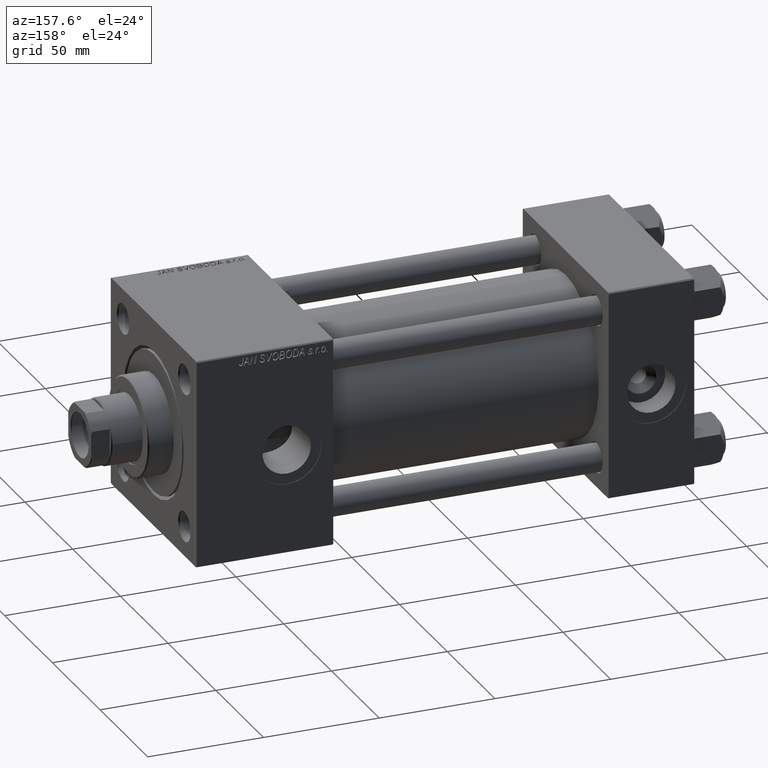
[diagram: clean part render]
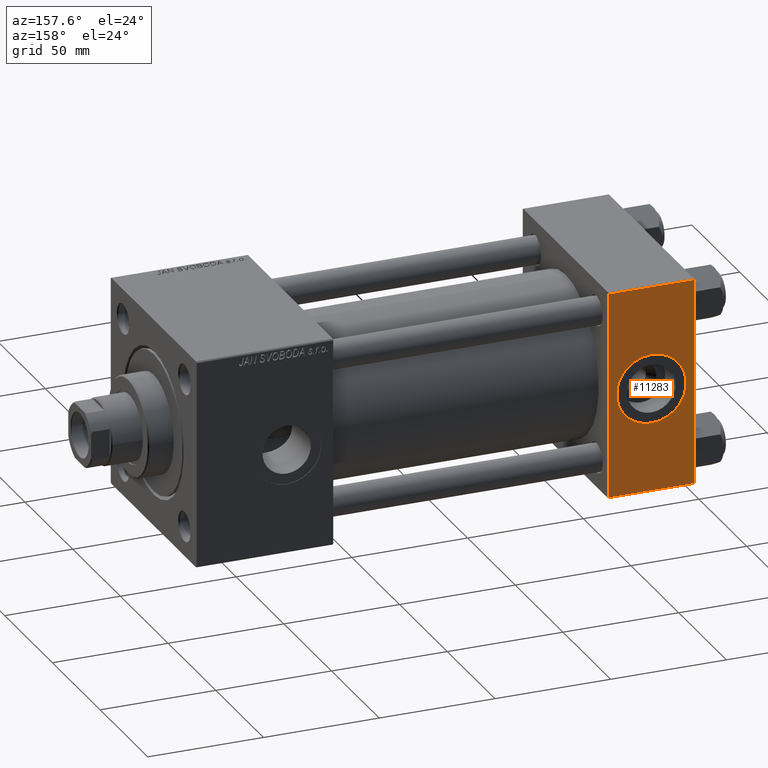
[diagram: same view with one face highlighted and labeled with its STEP entity id]
A machine part, auxiliary view. The second image highlights one B-rep face of the part: STEP entity #11283.
In plain terms, the highlighted planar face has unit normal (0, 1, 0).
Its self-contained STEP definition (entity closure, byte-faithful):
#76 = DIRECTION ( 'NONE',  ( 0.000000000000000000, 1.000000000000000000, 0.000000000000000000 ) ) ;
#372 = PLANE ( 'NONE',  #47318 ) ;
#624 = DIRECTION ( 'NONE',  ( 0.000000000000000000, -0.000000000000000000, 1.000000000000000000 ) ) ;
#1431 = CARTESIAN_POINT ( 'NONE',  ( 37.00000000000000000, 44.99999999999998579, 44.50000000000001421 ) ) ;
#3601 = CIRCLE ( 'NONE', #24708, 15.00000000000000178 ) ;
#3693 = DIRECTION ( 'NONE',  ( -0.000000000000000000, 1.000000000000000000, 0.000000000000000000 ) ) ;
#4444 = FACE_OUTER_BOUND ( 'NONE', #33919, .T. ) ;
#9525 = ORIENTED_EDGE ( 'NONE', *, *, #25649, .F. ) ;
#9831 = EDGE_LOOP ( 'NONE', ( #9525, #47221 ) ) ;
#11283 = ADVANCED_FACE ( 'NONE', ( #31376, #4444 ), #372, .T. ) ;
#12778 = CARTESIAN_POINT ( 'NONE',  ( 0.000000000000000000, 44.99999999999998579, 45.00000000000001421 ) ) ;
#13334 = CARTESIAN_POINT ( 'NONE',  ( 37.00000000000000000, 44.99999999999998579, -44.49999999999995737 ) ) ;
#13599 = EDGE_CURVE ( 'NONE', #38174, #45134, #24709, .T. ) ;
#13602 = VECTOR ( 'NONE', #15238, 1000.000000000000000 ) ;
#15238 = DIRECTION ( 'NONE',  ( 1.000000000000000000, 0.000000000000000000, 0.000000000000000000 ) ) ;
#16056 = LINE ( 'NONE', #32797, #28777 ) ;
#16568 = CARTESIAN_POINT ( 'NONE',  ( 18.50000000000000000, 44.99999999999998579, 15.00000000000000178 ) ) ;
#16971 = VERTEX_POINT ( 'NONE', #17012 ) ;
#17012 = CARTESIAN_POINT ( 'NONE',  ( 0.000000000000000000, 44.99999999999998579, 44.50000000000001421 ) ) ;
#17339 = CARTESIAN_POINT ( 'NONE',  ( 37.00000000000000000, 44.99999999999998579, 45.00000000000001421 ) ) ;
#17368 = DIRECTION ( 'NONE',  ( 0.000000000000000000, 0.000000000000000000, 1.000000000000000000 ) ) ;
#20894 = DIRECTION ( 'NONE',  ( 0.000000000000000000, 0.000000000000000000, -1.000000000000000000 ) ) ;
#20904 = DIRECTION ( 'NONE',  ( 0.000000000000000000, 0.000000000000000000, -1.000000000000000000 ) ) ;
#22959 = VECTOR ( 'NONE', #20904, 1000.000000000000000 ) ;
#22992 = CARTESIAN_POINT ( 'NONE',  ( 37.00000000000000000, 44.99999999999998579, 45.00000000000001421 ) ) ;
#23115 = VERTEX_POINT ( 'NONE', #48375 ) ;
#24708 = AXIS2_PLACEMENT_3D ( 'NONE', #34883, #76, #38926 ) ;
#24709 = LINE ( 'NONE', #17339, #22959 ) ;
#25179 = EDGE_CURVE ( 'NONE', #16971, #38174, #47900, .T. ) ;
#25649 = EDGE_CURVE ( 'NONE', #36779, #30102, #35534, .T. ) ;
#26030 = ORIENTED_EDGE ( 'NONE', *, *, #25179, .T. ) ;
#28511 = ORIENTED_EDGE ( 'NONE', *, *, #48137, .T. ) ;
#28777 = VECTOR ( 'NONE', #36603, 1000.000000000000000 ) ;
#29031 = CARTESIAN_POINT ( 'NONE',  ( 18.50000000000000355, 44.99999999999998579, -15.00000000000000178 ) ) ;
#30102 = VERTEX_POINT ( 'NONE', #29031 ) ;
#31376 = FACE_BOUND ( 'NONE', #9831, .T. ) ;
#32797 = CARTESIAN_POINT ( 'NONE',  ( 37.00000000000000000, 44.99999999999998579, -44.49999999999998579 ) ) ;
#33099 = DIRECTION ( 'NONE',  ( 0.000000000000000000, 1.000000000000000000, 0.000000000000000000 ) ) ;
#33919 = EDGE_LOOP ( 'NONE', ( #43243, #28511, #46695, #26030 ) ) ;
#34268 = VECTOR ( 'NONE', #20894, 1000.000000000000000 ) ;
#34883 = CARTESIAN_POINT ( 'NONE',  ( 18.50000000000000000, 44.99999999999998579, 0.000000000000000000 ) ) ;
#35534 = CIRCLE ( 'NONE', #39574, 15.00000000000000178 ) ;
#36603 = DIRECTION ( 'NONE',  ( -1.000000000000000000, 0.000000000000000000, 0.000000000000000000 ) ) ;
#36779 = VERTEX_POINT ( 'NONE', #16568 ) ;
#38174 = VERTEX_POINT ( 'NONE', #40178 ) ;
#38239 = EDGE_CURVE ( 'NONE', #16971, #23115, #44486, .T. ) ;
#38926 = DIRECTION ( 'NONE',  ( 0.000000000000000000, 0.000000000000000000, 1.000000000000000000 ) ) ;
#39574 = AXIS2_PLACEMENT_3D ( 'NONE', #47843, #33099, #17368 ) ;
#40178 = CARTESIAN_POINT ( 'NONE',  ( 37.00000000000000000, 44.99999999999998579, 44.50000000000001421 ) ) ;
#43243 = ORIENTED_EDGE ( 'NONE', *, *, #13599, .T. ) ;
#44486 = LINE ( 'NONE', #12778, #34268 ) ;
#45134 = VERTEX_POINT ( 'NONE', #13334 ) ;
#45983 = EDGE_CURVE ( 'NONE', #30102, #36779, #3601, .T. ) ;
#46695 = ORIENTED_EDGE ( 'NONE', *, *, #38239, .F. ) ;
#47221 = ORIENTED_EDGE ( 'NONE', *, *, #45983, .F. ) ;
#47318 = AXIS2_PLACEMENT_3D ( 'NONE', #22992, #3693, #624 ) ;
#47843 = CARTESIAN_POINT ( 'NONE',  ( 18.50000000000000000, 44.99999999999998579, 0.000000000000000000 ) ) ;
#47900 = LINE ( 'NONE', #1431, #13602 ) ;
#48137 = EDGE_CURVE ( 'NONE', #45134, #23115, #16056, .T. ) ;
#48375 = CARTESIAN_POINT ( 'NONE',  ( 0.000000000000000000, 44.99999999999998579, -44.49999999999995737 ) ) ;